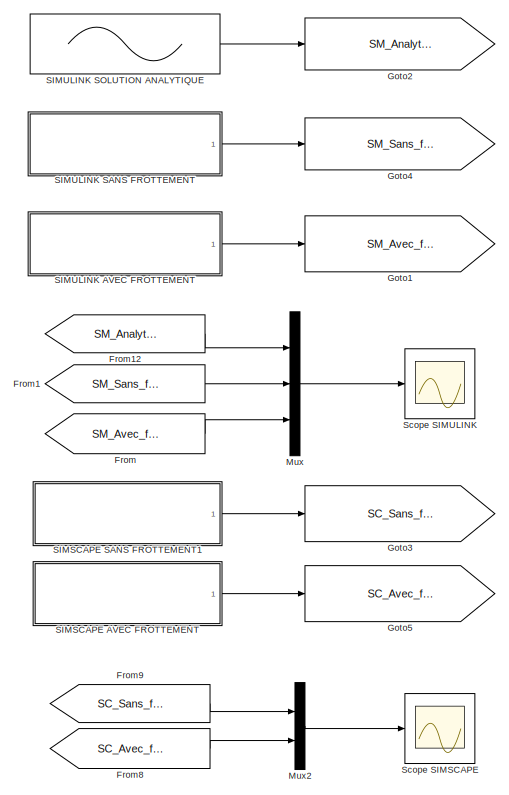
[diagram: root canvas - part 1/2, left side, full height]
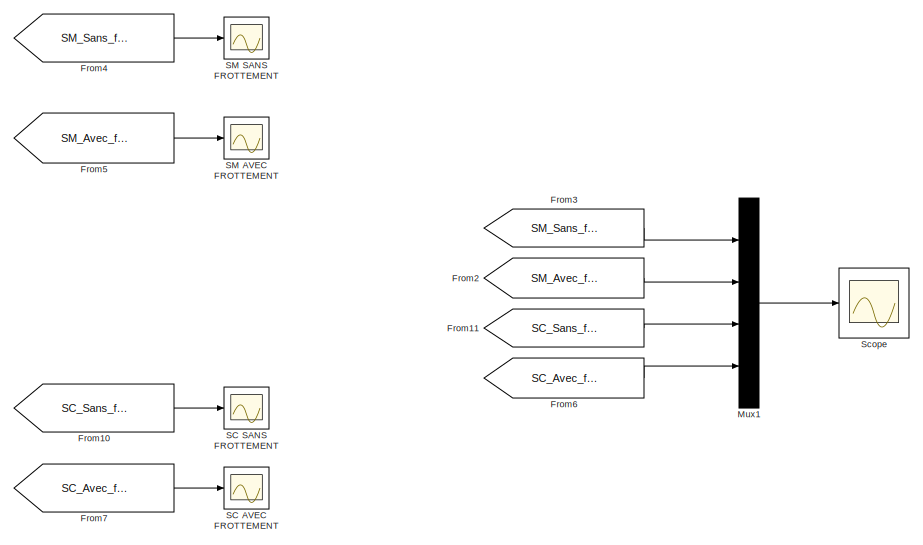
[diagram: root canvas - part 2/2, middle right region]
MODEL slx_a7cfd711a741
KIND model
CONFIG AbsTol = auto
CONFIG EnableMultiTasking = off
CONFIG FixedStep = auto
CONFIG MaxStep = 0.001
CONFIG MinStep = auto
CONFIG RelTol = 1e-3
CONFIG SampleTimeConstraint = Unconstrained
CONFIG SolverName = ode45
CONFIG StartTime = 0.0
CONFIG StopTime = 7
BLOCK [From] From
  GotoTag = SM_Avec_frottement
BLOCK [From] From1
  GotoTag = SM_Sans_frottement
BLOCK [From] From10
  GotoTag = SC_Sans_frottement
BLOCK [From] From11
  GotoTag = SC_Sans_frottement
BLOCK [From] From12
  GotoTag = SM_Analytique
BLOCK [From] From2
  GotoTag = SM_Avec_frottement
BLOCK [From] From3
  GotoTag = SM_Sans_frottement
BLOCK [From] From4
  GotoTag = SM_Sans_frottement
BLOCK [From] From5
  GotoTag = SM_Avec_frottement
BLOCK [From] From6
  GotoTag = SC_Avec_frottement
BLOCK [From] From7
  GotoTag = SC_Avec_frottement
BLOCK [From] From8
  GotoTag = SC_Avec_frottement
BLOCK [From] From9
  GotoTag = SC_Sans_frottement
BLOCK [Goto] Goto1
  GotoTag = SM_Avec_frottement
BLOCK [Goto] Goto2
  GotoTag = SM_Analytique
BLOCK [Goto] Goto3
  GotoTag = SC_Sans_frottement
BLOCK [Goto] Goto4
  GotoTag = SM_Sans_frottement
BLOCK [Goto] Goto5
  GotoTag = SC_Avec_frottement
BLOCK [Mux] Mux
  DisplayOption = bar
  Inputs = 3
  Ports = [3, 1]
BLOCK [Mux] Mux1
  DisplayOption = bar
  Ports = [4, 1]
BLOCK [Mux] Mux2
  DisplayOption = bar
  Inputs = 2
  Ports = [2, 1]
BLOCK [Scope] SC AVEC FROTTEMENT
  Floating = off
  NumInputPorts = 1
  Ports = [1]
  ScopeSpecificationString = Simulink.scopes.TimeScopeBlockCfg('CurrentConfiguration', extmgr.ConfigurationSet(extmgr.Configuration('Core','General UI',true),extmgr.Configuration('Core','Source UI',true),extmgr.Configuration('Sources','WiredSimulink',true,'DataLoggingVariableName','ScopeData3'),extmgr.Configuration('Visuals','Time Domain',true,'SerializedDisplays',{struct('MinYLimReal','-0.72977','MaxYLimReal','0.95375','YLab...<+1417ch>
BLOCK [Scope] SC SANS FROTTEMENT
  Floating = off
  NumInputPorts = 1
  Ports = [1]
  ScopeSpecificationString = Simulink.scopes.TimeScopeBlockCfg('CurrentConfiguration', extmgr.ConfigurationSet(extmgr.Configuration('Core','General UI',true),extmgr.Configuration('Core','Source UI',true),extmgr.Configuration('Sources','WiredSimulink',true,'DataLoggingVariableName','ScopeData6'),extmgr.Configuration('Visuals','Time Domain',true,'SerializedDisplays',{struct('MinYLimReal','-0.98175','MaxYLimReal','0.98175','YLab...<+1384ch>
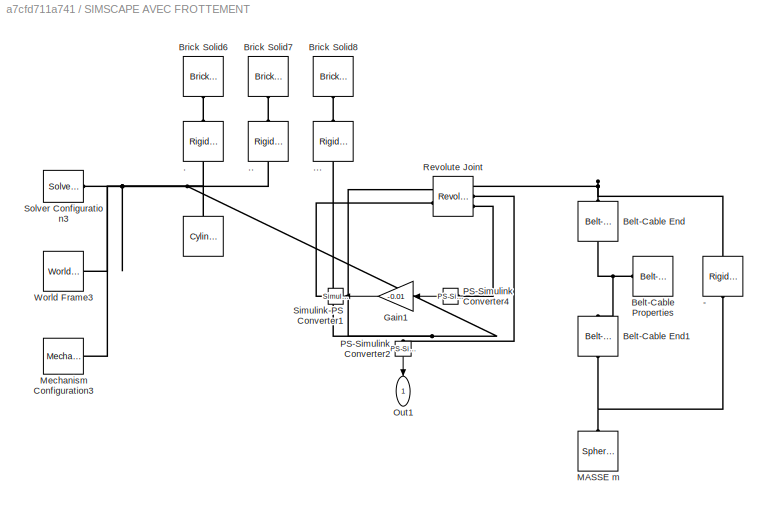
BLOCK [SubSystem] SIMSCAPE AVEC FROTTEMENT
  Ports = [0, 1]
  RequestExecContextInheritance = off
BLOCK [Reference] SIMSCAPE AVEC FROTTEMENT/   REF=sm_lib/Body Elements/Cylindrical Solid
  NameLocation = left
  Ports = [0, 0, 0, 0, 0, 0, 1]
  SourceBlock = sm_lib/Body Elements/Cylindrical Solid
  SourceProductBaseCode = MS
  SourceType = Cylindrical Solid
BLOCK [Reference] SIMSCAPE AVEC FROTTEMENT/-  REF=sm_lib/Frames and
Transforms/Rigid
Transform
  NameLocation = right
  Ports = [0, 0, 0, 0, 0, 1, 1]
  SourceBlock = sm_lib/Frames and\nTransforms/Rigid\nTransform
  SourceProductBaseCode = MS
  SourceType = Rigid\nTransform
BLOCK [Reference] SIMSCAPE AVEC FROTTEMENT/.  REF=sm_lib/Frames and
Transforms/Rigid
Transform
  NameLocation = right
  Ports = [0, 0, 0, 0, 0, 1, 1]
  SourceBlock = sm_lib/Frames and\nTransforms/Rigid\nTransform
  SourceProductBaseCode = MS
  SourceType = Rigid\nTransform
BLOCK [Reference] SIMSCAPE AVEC FROTTEMENT/..  REF=sm_lib/Frames and
Transforms/Rigid
Transform
  NameLocation = right
  Ports = [0, 0, 0, 0, 0, 1, 1]
  SourceBlock = sm_lib/Frames and\nTransforms/Rigid\nTransform
  SourceProductBaseCode = MS
  SourceType = Rigid\nTransform
BLOCK [Reference] SIMSCAPE AVEC FROTTEMENT/...  REF=sm_lib/Frames and
Transforms/Rigid
Transform
  NameLocation = right
  Ports = [0, 0, 0, 0, 0, 1, 1]
  SourceBlock = sm_lib/Frames and\nTransforms/Rigid\nTransform
  SourceProductBaseCode = MS
  SourceType = Rigid\nTransform
BLOCK [Reference] SIMSCAPE AVEC FROTTEMENT/Belt-Cable End  REF=sm_lib/Belts and Cables/Belt-Cable End
  NameLocation = left
  Ports = [0, 0, 0, 0, 0, 1, 1]
  SourceBlock = sm_lib/Belts and Cables/Belt-Cable End
  SourceProductBaseCode = MS
  SourceType = Belt-Cable End
BLOCK [Reference] SIMSCAPE AVEC FROTTEMENT/Belt-Cable End1  REF=sm_lib/Belts and Cables/Belt-Cable End
  NameLocation = right
  Ports = [0, 0, 0, 0, 0, 1, 1]
  SourceBlock = sm_lib/Belts and Cables/Belt-Cable End
  SourceProductBaseCode = MS
  SourceType = Belt-Cable End
BLOCK [Reference] SIMSCAPE AVEC FROTTEMENT/Belt-Cable Properties  REF=sm_lib/Belts and Cables/Belt-Cable
Properties
  Ports = [0, 0, 0, 0, 0, 1]
  SourceBlock = sm_lib/Belts and Cables/Belt-Cable\nProperties
  SourceProductBaseCode = MS
  SourceType = Belt-Cable\nProperties
BLOCK [Reference] SIMSCAPE AVEC FROTTEMENT/Brick Solid6  REF=sm_lib/Body Elements/Brick Solid
  NameLocation = left
  Ports = [0, 0, 0, 0, 0, 0, 1]
  SourceBlock = sm_lib/Body Elements/Brick Solid
  SourceProductBaseCode = MS
  SourceType = Brick Solid
BLOCK [Reference] SIMSCAPE AVEC FROTTEMENT/Brick Solid7  REF=sm_lib/Body Elements/Brick Solid
  NameLocation = left
  Ports = [0, 0, 0, 0, 0, 0, 1]
  SourceBlock = sm_lib/Body Elements/Brick Solid
  SourceProductBaseCode = MS
  SourceType = Brick Solid
BLOCK [Reference] SIMSCAPE AVEC FROTTEMENT/Brick Solid8  REF=sm_lib/Body Elements/Brick Solid
  NameLocation = left
  Ports = [0, 0, 0, 0, 0, 0, 1]
  SourceBlock = sm_lib/Body Elements/Brick Solid
  SourceProductBaseCode = MS
  SourceType = Brick Solid
BLOCK [Gain] SIMSCAPE AVEC FROTTEMENT/Gain1
  Gain = -0.01
  NameLocation = top
BLOCK [Reference] SIMSCAPE AVEC FROTTEMENT/MASSE m  REF=sm_lib/Body Elements/Spherical Solid
  NameLocation = right
  Ports = [0, 0, 0, 0, 0, 0, 1]
  SourceBlock = sm_lib/Body Elements/Spherical Solid
  SourceProductBaseCode = MS
  SourceType = Spherical Solid
BLOCK [Reference] SIMSCAPE AVEC FROTTEMENT/Mechanism Configuration3  REF=sm_lib/Utilities/Mechanism
Configuration
  Ports = [0, 0, 0, 0, 0, 0, 1]
  SourceBlock = sm_lib/Utilities/Mechanism\nConfiguration
  SourceProductBaseCode = MS
  SourceType = Mechanism\nConfiguration
BLOCK [Outport] SIMSCAPE AVEC FROTTEMENT/Out1
  NameLocation = left
BLOCK [Reference] SIMSCAPE AVEC FROTTEMENT/PS-Simulink Converter2  REF=nesl_utility/PS-Simulink
Converter
  NameLocation = left
  Ports = [0, 1, 0, 0, 0, 1]
  SourceBlock = nesl_utility/PS-Simulink\nConverter
  SourceProductBaseCode = PW,SS
  SourceType = PS-Simulink\nConverter
BLOCK [Reference] SIMSCAPE AVEC FROTTEMENT/PS-Simulink Converter4  REF=nesl_utility/PS-Simulink
Converter
  NameLocation = top
  Ports = [0, 1, 0, 0, 0, 1]
  SourceBlock = nesl_utility/PS-Simulink\nConverter
  SourceProductBaseCode = PW,SS
  SourceType = PS-Simulink\nConverter
BLOCK [Reference] SIMSCAPE AVEC FROTTEMENT/Revolute Joint  REF=sm_lib/Joints/Revolute Joint
  Ports = [0, 0, 0, 0, 0, 2, 3]
  SourceBlock = sm_lib/Joints/Revolute Joint
  SourceProductBaseCode = MS
  SourceType = Revolute Joint
BLOCK [Reference] SIMSCAPE AVEC FROTTEMENT/Simulink-PS Converter1  REF=nesl_utility/Simulink-PS
Converter
  Ports = [1, 0, 0, 0, 0, 0, 1]
  SourceBlock = nesl_utility/Simulink-PS\nConverter
  SourceProductBaseCode = PW,SS
  SourceType = Simulink-PS\nConverter
BLOCK [Reference] SIMSCAPE AVEC FROTTEMENT/Solver Configuration3  REF=nesl_utility/Solver
Configuration
  Ports = [0, 0, 0, 0, 0, 0, 1]
  SourceBlock = nesl_utility/Solver\nConfiguration
  SourceProductBaseCode = PW,SS
  SourceType = Solver\nConfiguration
BLOCK [Reference] SIMSCAPE AVEC FROTTEMENT/World Frame3  REF=sm_lib/Frames and
Transforms/World Frame
  NameLocation = top
  Ports = [0, 0, 0, 0, 0, 0, 1]
  SourceBlock = sm_lib/Frames and\nTransforms/World Frame
  SourceProductBaseCode = MS
  SourceType = World Frame
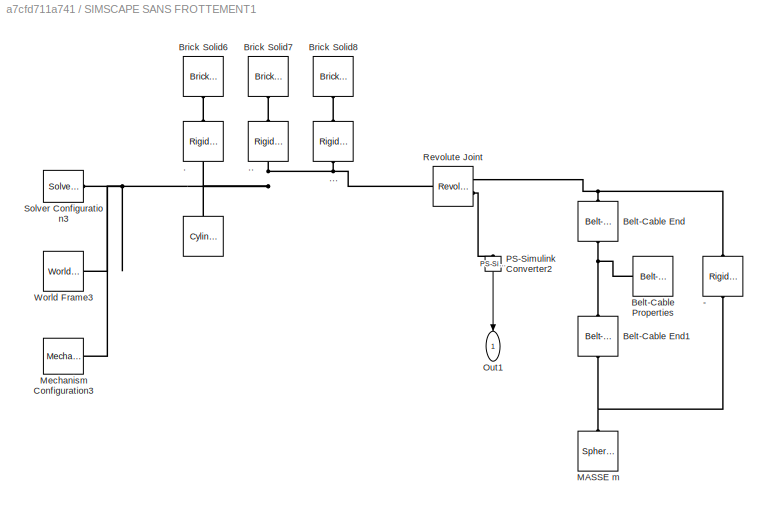
BLOCK [SubSystem] SIMSCAPE SANS FROTTEMENT1
  Ports = [0, 1]
  RequestExecContextInheritance = off
BLOCK [Reference] SIMSCAPE SANS FROTTEMENT1/   REF=sm_lib/Body Elements/Cylindrical Solid
  NameLocation = left
  Ports = [0, 0, 0, 0, 0, 0, 1]
  SourceBlock = sm_lib/Body Elements/Cylindrical Solid
  SourceProductBaseCode = MS
  SourceType = Cylindrical Solid
BLOCK [Reference] SIMSCAPE SANS FROTTEMENT1/-  REF=sm_lib/Frames and
Transforms/Rigid
Transform
  NameLocation = right
  Ports = [0, 0, 0, 0, 0, 1, 1]
  SourceBlock = sm_lib/Frames and\nTransforms/Rigid\nTransform
  SourceProductBaseCode = MS
  SourceType = Rigid\nTransform
BLOCK [Reference] SIMSCAPE SANS FROTTEMENT1/.  REF=sm_lib/Frames and
Transforms/Rigid
Transform
  NameLocation = right
  Ports = [0, 0, 0, 0, 0, 1, 1]
  SourceBlock = sm_lib/Frames and\nTransforms/Rigid\nTransform
  SourceProductBaseCode = MS
  SourceType = Rigid\nTransform
BLOCK [Reference] SIMSCAPE SANS FROTTEMENT1/..  REF=sm_lib/Frames and
Transforms/Rigid
Transform
  NameLocation = right
  Ports = [0, 0, 0, 0, 0, 1, 1]
  SourceBlock = sm_lib/Frames and\nTransforms/Rigid\nTransform
  SourceProductBaseCode = MS
  SourceType = Rigid\nTransform
BLOCK [Reference] SIMSCAPE SANS FROTTEMENT1/...  REF=sm_lib/Frames and
Transforms/Rigid
Transform
  NameLocation = right
  Ports = [0, 0, 0, 0, 0, 1, 1]
  SourceBlock = sm_lib/Frames and\nTransforms/Rigid\nTransform
  SourceProductBaseCode = MS
  SourceType = Rigid\nTransform
BLOCK [Reference] SIMSCAPE SANS FROTTEMENT1/Belt-Cable End  REF=sm_lib/Belts and Cables/Belt-Cable End
  NameLocation = left
  Ports = [0, 0, 0, 0, 0, 1, 1]
  SourceBlock = sm_lib/Belts and Cables/Belt-Cable End
  SourceProductBaseCode = MS
  SourceType = Belt-Cable End
BLOCK [Reference] SIMSCAPE SANS FROTTEMENT1/Belt-Cable End1  REF=sm_lib/Belts and Cables/Belt-Cable End
  NameLocation = right
  Ports = [0, 0, 0, 0, 0, 1, 1]
  SourceBlock = sm_lib/Belts and Cables/Belt-Cable End
  SourceProductBaseCode = MS
  SourceType = Belt-Cable End
BLOCK [Reference] SIMSCAPE SANS FROTTEMENT1/Belt-Cable Properties  REF=sm_lib/Belts and Cables/Belt-Cable
Properties
  Ports = [0, 0, 0, 0, 0, 1]
  SourceBlock = sm_lib/Belts and Cables/Belt-Cable\nProperties
  SourceProductBaseCode = MS
  SourceType = Belt-Cable\nProperties
BLOCK [Reference] SIMSCAPE SANS FROTTEMENT1/Brick Solid6  REF=sm_lib/Body Elements/Brick Solid
  NameLocation = left
  Ports = [0, 0, 0, 0, 0, 0, 1]
  SourceBlock = sm_lib/Body Elements/Brick Solid
  SourceProductBaseCode = MS
  SourceType = Brick Solid
BLOCK [Reference] SIMSCAPE SANS FROTTEMENT1/Brick Solid7  REF=sm_lib/Body Elements/Brick Solid
  NameLocation = left
  Ports = [0, 0, 0, 0, 0, 0, 1]
  SourceBlock = sm_lib/Body Elements/Brick Solid
  SourceProductBaseCode = MS
  SourceType = Brick Solid
BLOCK [Reference] SIMSCAPE SANS FROTTEMENT1/Brick Solid8  REF=sm_lib/Body Elements/Brick Solid
  NameLocation = left
  Ports = [0, 0, 0, 0, 0, 0, 1]
  SourceBlock = sm_lib/Body Elements/Brick Solid
  SourceProductBaseCode = MS
  SourceType = Brick Solid
BLOCK [Reference] SIMSCAPE SANS FROTTEMENT1/MASSE m  REF=sm_lib/Body Elements/Spherical Solid
  NameLocation = right
  Ports = [0, 0, 0, 0, 0, 0, 1]
  SourceBlock = sm_lib/Body Elements/Spherical Solid
  SourceProductBaseCode = MS
  SourceType = Spherical Solid
BLOCK [Reference] SIMSCAPE SANS FROTTEMENT1/Mechanism Configuration3  REF=sm_lib/Utilities/Mechanism
Configuration
  Ports = [0, 0, 0, 0, 0, 0, 1]
  SourceBlock = sm_lib/Utilities/Mechanism\nConfiguration
  SourceProductBaseCode = MS
  SourceType = Mechanism\nConfiguration
BLOCK [Outport] SIMSCAPE SANS FROTTEMENT1/Out1
  NameLocation = left
BLOCK [Reference] SIMSCAPE SANS FROTTEMENT1/PS-Simulink Converter2  REF=nesl_utility/PS-Simulink
Converter
  NameLocation = left
  Ports = [0, 1, 0, 0, 0, 1]
  SourceBlock = nesl_utility/PS-Simulink\nConverter
  SourceProductBaseCode = PW,SS
  SourceType = PS-Simulink\nConverter
BLOCK [Reference] SIMSCAPE SANS FROTTEMENT1/Revolute Joint  REF=sm_lib/Joints/Revolute Joint
  Ports = [0, 0, 0, 0, 0, 1, 2]
  SourceBlock = sm_lib/Joints/Revolute Joint
  SourceProductBaseCode = MS
  SourceType = Revolute Joint
BLOCK [Reference] SIMSCAPE SANS FROTTEMENT1/Solver Configuration3  REF=nesl_utility/Solver
Configuration
  Ports = [0, 0, 0, 0, 0, 0, 1]
  SourceBlock = nesl_utility/Solver\nConfiguration
  SourceProductBaseCode = PW,SS
  SourceType = Solver\nConfiguration
BLOCK [Reference] SIMSCAPE SANS FROTTEMENT1/World Frame3  REF=sm_lib/Frames and
Transforms/World Frame
  NameLocation = top
  Ports = [0, 0, 0, 0, 0, 0, 1]
  SourceBlock = sm_lib/Frames and\nTransforms/World Frame
  SourceProductBaseCode = MS
  SourceType = World Frame
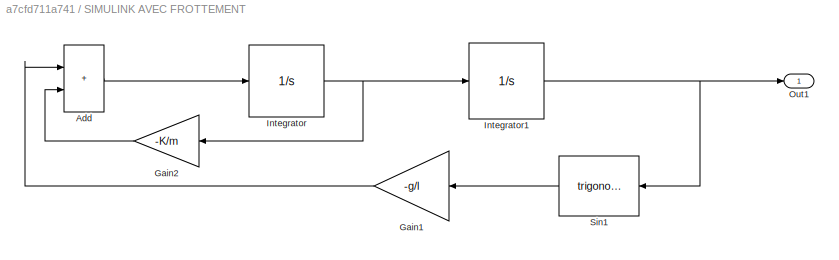
BLOCK [SubSystem] SIMULINK AVEC FROTTEMENT
  Ports = [0, 1]
  RequestExecContextInheritance = off
BLOCK [Sum] SIMULINK AVEC FROTTEMENT/Add
  IconShape = rectangular
  Ports = [2, 1]
BLOCK [Gain] SIMULINK AVEC FROTTEMENT/Gain1
  Gain = -g/l
  NameLocation = top
BLOCK [Gain] SIMULINK AVEC FROTTEMENT/Gain2
  Gain = -K/m
  NameLocation = top
BLOCK [Integrator] SIMULINK AVEC FROTTEMENT/Integrator
  Ports = [1, 1]
BLOCK [Integrator] SIMULINK AVEC FROTTEMENT/Integrator1
  InitialCondition = theta0
  Ports = [1, 1]
BLOCK [Outport] SIMULINK AVEC FROTTEMENT/Out1
BLOCK [Trigonometry] SIMULINK AVEC FROTTEMENT/Sin1
  NameLocation = top
  Ports = [1, 1]
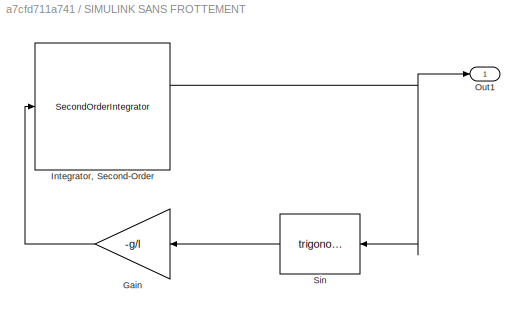
BLOCK [SubSystem] SIMULINK SANS FROTTEMENT
  Ports = [0, 1]
  RequestExecContextInheritance = off
BLOCK [Gain] SIMULINK SANS FROTTEMENT/Gain
  Gain = -g/l
  NameLocation = top
BLOCK [SecondOrderIntegrator] SIMULINK SANS FROTTEMENT/Integrator, Second-Order
  ICX = pi/4
  Ports = [1, 2]
BLOCK [Outport] SIMULINK SANS FROTTEMENT/Out1
BLOCK [Trigonometry] SIMULINK SANS FROTTEMENT/Sin
  NameLocation = top
  Ports = [1, 1]
BLOCK [Sin] SIMULINK SOLUTION ANALYTIQUE
  Amplitude = pi/4
  Frequency = w0
  Phase = pi/2
  Ports = [0, 1]
  SampleTime = 0
BLOCK [Scope] SM AVEC FROTTEMENT
  Floating = off
  NumInputPorts = 1
  Ports = [1]
  ScopeSpecificationString = Simulink.scopes.TimeScopeBlockCfg('CurrentConfiguration', extmgr.ConfigurationSet(extmgr.Configuration('Core','General UI',true),extmgr.Configuration('Core','Source UI',true),extmgr.Configuration('Sources','WiredSimulink',true,'DataLoggingVariableName','ScopeData2'),extmgr.Configuration('Visuals','Time Domain',true,'SerializedDisplays',{struct('MinYLimReal','-0.72938','MaxYLimReal','0.95371','YLab...<+1419ch>
BLOCK [Scope] SM SANS FROTTEMENT
  Floating = off
  NumInputPorts = 1
  Ports = [1]
  ScopeSpecificationString = Simulink.scopes.TimeScopeBlockCfg('CurrentConfiguration', extmgr.ConfigurationSet(extmgr.Configuration('Core','General UI',true),extmgr.Configuration('Core','Source UI',true),extmgr.Configuration('Sources','WiredSimulink',true,'DataLoggingVariableName','ScopeData1'),extmgr.Configuration('Visuals','Time Domain',true,'SerializedDisplays',{struct('MinYLimReal','-0.98175','MaxYLimReal','0.98175','YLab...<+1414ch>
BLOCK [Scope] Scope
  Floating = off
  NumInputPorts = 1
  Ports = [1]
  ScopeSpecificationString = Simulink.scopes.TimeScopeBlockCfg('CurrentConfiguration', extmgr.ConfigurationSet(extmgr.Configuration('Core','General UI',true),extmgr.Configuration('Core','Source UI',true),extmgr.Configuration('Sources','WiredSimulink',true,'DataLoggingVariableName','ScopeData4'),extmgr.Configuration('Visuals','Time Domain',true,'SerializedDisplays',{struct('MinYLimReal','-0.98175','MaxYLimReal','0.98175','YLab...<+1643ch>
BLOCK [Scope] Scope SIMSCAPE
  Floating = off
  NumInputPorts = 1
  Ports = [1]
  ScopeSpecificationString = Simulink.scopes.TimeScopeBlockCfg('CurrentConfiguration', extmgr.ConfigurationSet(extmgr.Configuration('Core','General UI',true),extmgr.Configuration('Core','Source UI',true),extmgr.Configuration('Sources','WiredSimulink',true,'DataLoggingVariableName','ScopeData5'),extmgr.Configuration('Visuals','Time Domain',true,'SerializedDisplays',{struct('MinYLimReal','-0.98175','MaxYLimReal','0.98175','YLab...<+1525ch>
BLOCK [Scope] Scope SIMULINK
  Floating = off
  NumInputPorts = 1
  Ports = [1]
  ScopeSpecificationString = Simulink.scopes.TimeScopeBlockCfg('CurrentConfiguration', extmgr.ConfigurationSet(extmgr.Configuration('Core','General UI',true),extmgr.Configuration('Core','Source UI',true),extmgr.Configuration('Sources','WiredSimulink',true),extmgr.Configuration('Visuals','Time Domain',true,'SerializedDisplays',{struct('MinYLimReal','-0.98175','MaxYLimReal','0.98175','YLabelReal','','MinYLimMag','0.00000','MaxY...<+1554ch>
LINE From10:1 -> SC SANS FROTTEMENT:1
LINE From11:1 -> Mux1:3
LINE From12:1 -> Mux:1
LINE From1:1 -> Mux:2
LINE From2:1 -> Mux1:2
LINE From3:1 -> Mux1:1
LINE From4:1 -> SM SANS FROTTEMENT:1
LINE From5:1 -> SM AVEC FROTTEMENT:1
LINE From6:1 -> Mux1:4
LINE From7:1 -> SC AVEC FROTTEMENT:1
LINE From8:1 -> Mux2:2
LINE From9:1 -> Mux2:1
LINE From:1 -> Mux:3
LINE Mux1:1 -> Scope:1
LINE Mux2:1 -> Scope SIMSCAPE:1
LINE Mux:1 -> Scope SIMULINK:1
LINE SIMSCAPE AVEC FROTTEMENT/Gain1:1 -> SIMSCAPE AVEC FROTTEMENT/Simulink-PS Converter1:1
LINE SIMSCAPE AVEC FROTTEMENT/PS-Simulink Converter2:1 -> SIMSCAPE AVEC FROTTEMENT/Out1:1
LINE SIMSCAPE AVEC FROTTEMENT/PS-Simulink Converter4:1 -> SIMSCAPE AVEC FROTTEMENT/Gain1:1
LINE SIMSCAPE AVEC FROTTEMENT:1 -> Goto5:1
LINE SIMSCAPE SANS FROTTEMENT1/PS-Simulink Converter2:1 -> SIMSCAPE SANS FROTTEMENT1/Out1:1
LINE SIMSCAPE SANS FROTTEMENT1:1 -> Goto3:1
LINE SIMULINK AVEC FROTTEMENT/Add:1 -> SIMULINK AVEC FROTTEMENT/Integrator:1
LINE SIMULINK AVEC FROTTEMENT/Gain1:1 -> SIMULINK AVEC FROTTEMENT/Add:1
LINE SIMULINK AVEC FROTTEMENT/Gain2:1 -> SIMULINK AVEC FROTTEMENT/Add:2
NET SIMULINK AVEC FROTTEMENT/Integrator1:1 -> SIMULINK AVEC FROTTEMENT/Out1:1, SIMULINK AVEC FROTTEMENT/Sin1:1
NET SIMULINK AVEC FROTTEMENT/Integrator:1 -> SIMULINK AVEC FROTTEMENT/Gain2:1, SIMULINK AVEC FROTTEMENT/Integrator1:1
LINE SIMULINK AVEC FROTTEMENT/Sin1:1 -> SIMULINK AVEC FROTTEMENT/Gain1:1
LINE SIMULINK AVEC FROTTEMENT:1 -> Goto1:1
LINE SIMULINK SANS FROTTEMENT/Gain:1 -> SIMULINK SANS FROTTEMENT/Integrator, Second-Order:1
NET SIMULINK SANS FROTTEMENT/Integrator, Second-Order:1 -> SIMULINK SANS FROTTEMENT/Out1:1, SIMULINK SANS FROTTEMENT/Sin:1
LINE SIMULINK SANS FROTTEMENT/Sin:1 -> SIMULINK SANS FROTTEMENT/Gain:1
LINE SIMULINK SANS FROTTEMENT:1 -> Goto4:1
LINE SIMULINK SOLUTION ANALYTIQUE:1 -> Goto2:1
PNET net1: SIMSCAPE AVEC FROTTEMENT/ :RConn1 -- SIMSCAPE AVEC FROTTEMENT/...:RConn1 -- SIMSCAPE AVEC FROTTEMENT/..:RConn1 -- SIMSCAPE AVEC FROTTEMENT/.:RConn1 -- SIMSCAPE AVEC FROTTEMENT/Mechanism Configuration3:RConn1 -- SIMSCAPE AVEC FROTTEMENT/Revolute Joint:LConn1 -- SIMSCAPE AVEC FROTTEMENT/Solver Configuration3:RConn1 -- SIMSCAPE AVEC FROTTEMENT/World Frame3:RConn1
PNET net2: SIMSCAPE AVEC FROTTEMENT/-:LConn1 -- SIMSCAPE AVEC FROTTEMENT/Belt-Cable End:LConn1 -- SIMSCAPE AVEC FROTTEMENT/Revolute Joint:RConn1
PNET net3: SIMSCAPE AVEC FROTTEMENT/-:RConn1 -- SIMSCAPE AVEC FROTTEMENT/Belt-Cable End1:LConn1 -- SIMSCAPE AVEC FROTTEMENT/MASSE m:RConn1
PLINE SIMSCAPE AVEC FROTTEMENT/...:LConn1 -- SIMSCAPE AVEC FROTTEMENT/Brick Solid8:RConn1
PLINE SIMSCAPE AVEC FROTTEMENT/..:LConn1 -- SIMSCAPE AVEC FROTTEMENT/Brick Solid7:RConn1
PLINE SIMSCAPE AVEC FROTTEMENT/.:LConn1 -- SIMSCAPE AVEC FROTTEMENT/Brick Solid6:RConn1
PNET net4: SIMSCAPE AVEC FROTTEMENT/Belt-Cable End1:RConn1 -- SIMSCAPE AVEC FROTTEMENT/Belt-Cable End:RConn1 -- SIMSCAPE AVEC FROTTEMENT/Belt-Cable Properties:LConn1
PLINE SIMSCAPE AVEC FROTTEMENT/PS-Simulink Converter2:LConn1 -- SIMSCAPE AVEC FROTTEMENT/Revolute Joint:RConn2
PLINE SIMSCAPE AVEC FROTTEMENT/PS-Simulink Converter4:LConn1 -- SIMSCAPE AVEC FROTTEMENT/Revolute Joint:RConn3
PLINE SIMSCAPE AVEC FROTTEMENT/Revolute Joint:LConn2 -- SIMSCAPE AVEC FROTTEMENT/Simulink-PS Converter1:RConn1
PNET net5: SIMSCAPE SANS FROTTEMENT1/ :RConn1 -- SIMSCAPE SANS FROTTEMENT1/...:RConn1 -- SIMSCAPE SANS FROTTEMENT1/..:RConn1 -- SIMSCAPE SANS FROTTEMENT1/.:RConn1 -- SIMSCAPE SANS FROTTEMENT1/Mechanism Configuration3:RConn1 -- SIMSCAPE SANS FROTTEMENT1/Revolute Joint:LConn1 -- SIMSCAPE SANS FROTTEMENT1/Solver Configuration3:RConn1 -- SIMSCAPE SANS FROTTEMENT1/World Frame3:RConn1
PNET net6: SIMSCAPE SANS FROTTEMENT1/-:LConn1 -- SIMSCAPE SANS FROTTEMENT1/Belt-Cable End:LConn1 -- SIMSCAPE SANS FROTTEMENT1/Revolute Joint:RConn1
PNET net7: SIMSCAPE SANS FROTTEMENT1/-:RConn1 -- SIMSCAPE SANS FROTTEMENT1/Belt-Cable End1:LConn1 -- SIMSCAPE SANS FROTTEMENT1/MASSE m:RConn1
PLINE SIMSCAPE SANS FROTTEMENT1/...:LConn1 -- SIMSCAPE SANS FROTTEMENT1/Brick Solid8:RConn1
PLINE SIMSCAPE SANS FROTTEMENT1/..:LConn1 -- SIMSCAPE SANS FROTTEMENT1/Brick Solid7:RConn1
PLINE SIMSCAPE SANS FROTTEMENT1/.:LConn1 -- SIMSCAPE SANS FROTTEMENT1/Brick Solid6:RConn1
PNET net8: SIMSCAPE SANS FROTTEMENT1/Belt-Cable End1:RConn1 -- SIMSCAPE SANS FROTTEMENT1/Belt-Cable End:RConn1 -- SIMSCAPE SANS FROTTEMENT1/Belt-Cable Properties:LConn1
PLINE SIMSCAPE SANS FROTTEMENT1/PS-Simulink Converter2:LConn1 -- SIMSCAPE SANS FROTTEMENT1/Revolute Joint:RConn2
note: NET lines group one-source signal fan-out (src -> all destinations, sorted); 1:1 wires keep LINE; PNET lines group multi-terminal physical nets as a canonical sorted terminal list (undirected conserving connections); 2-terminal nets keep the pairwise PLINE form
